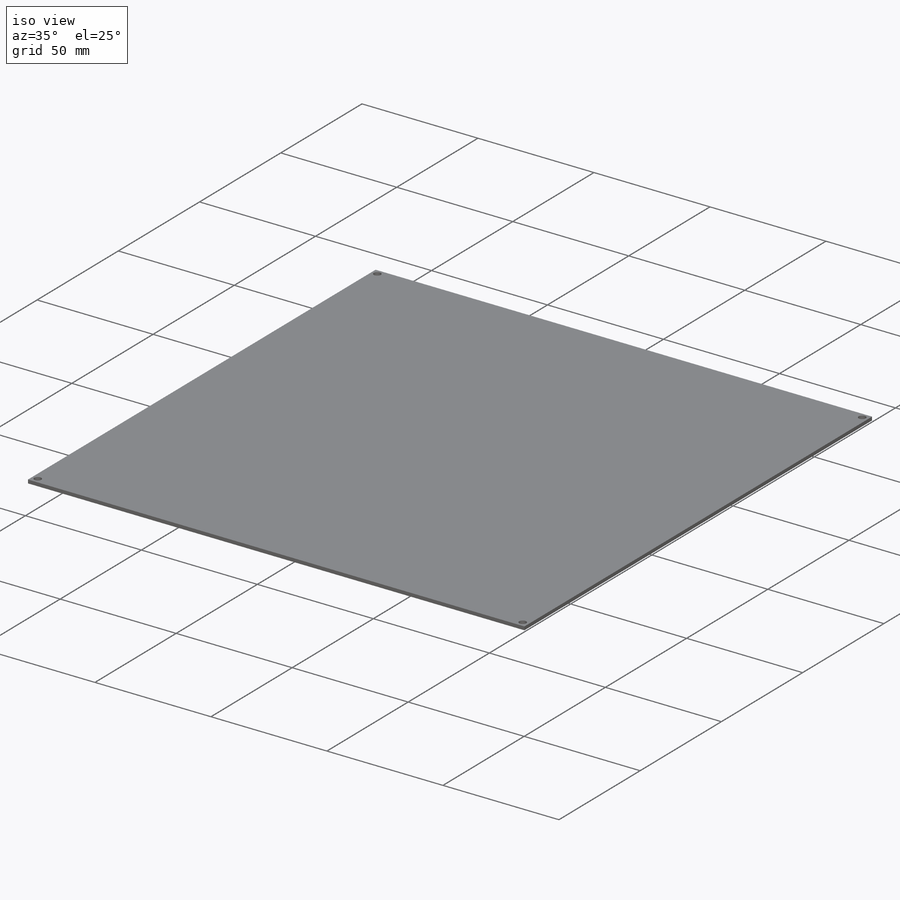
[diagram: iso view]
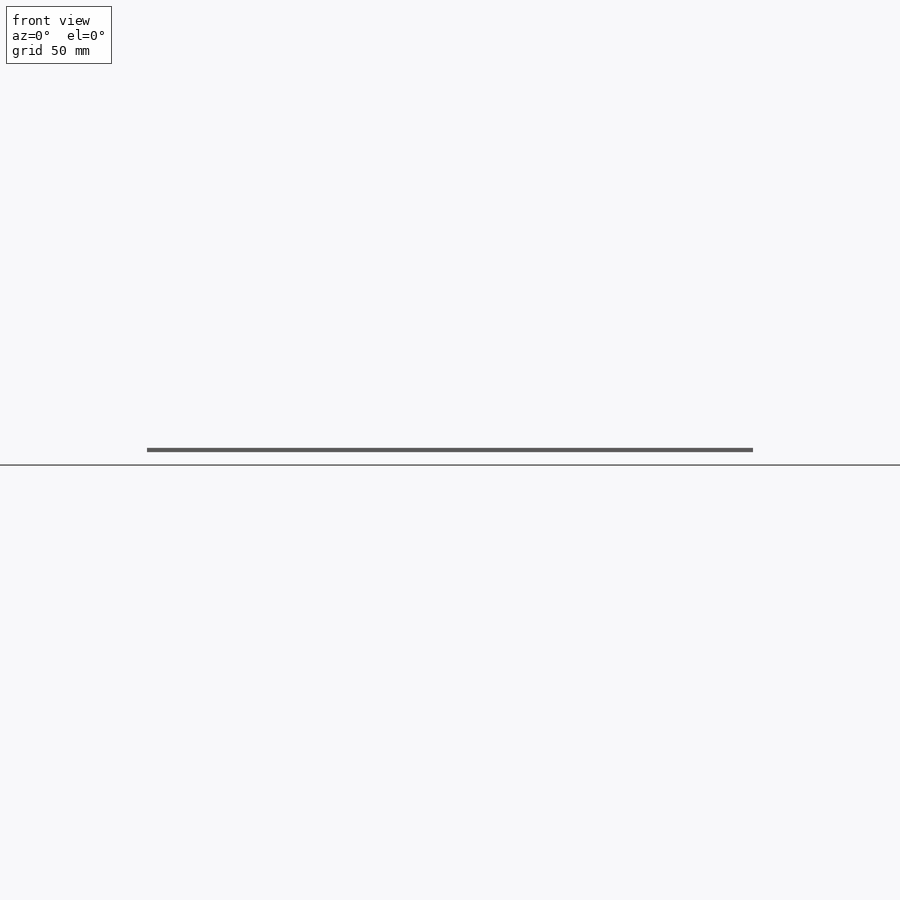
[diagram: front view]
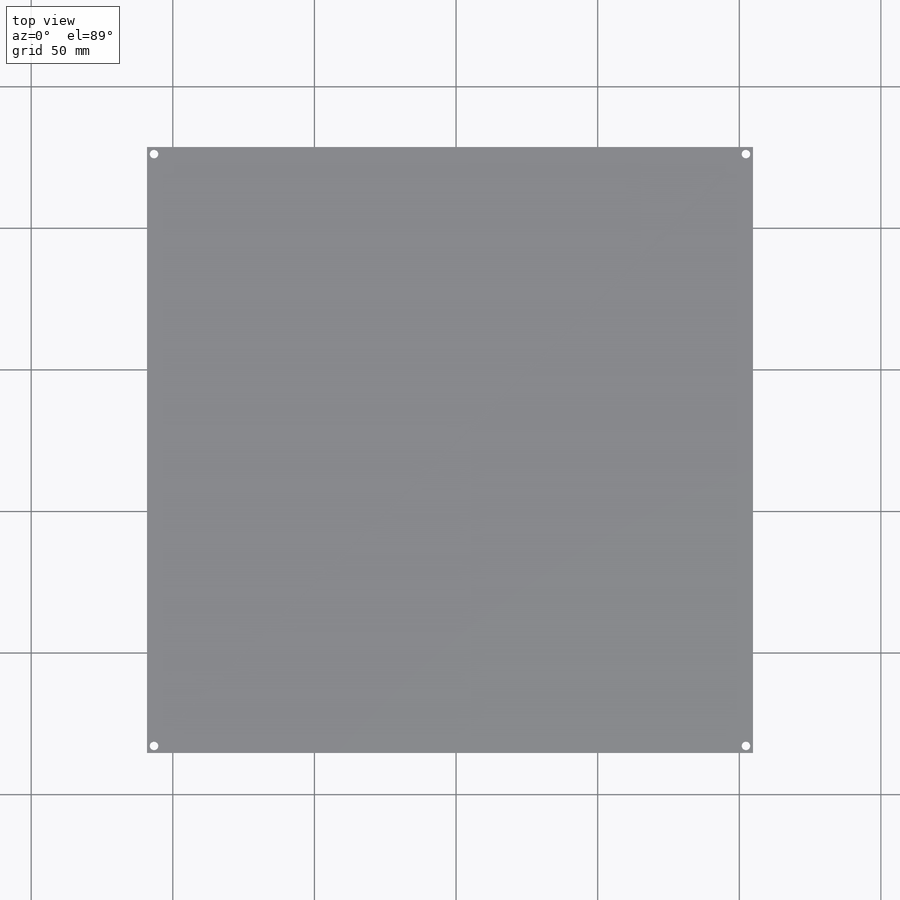
[diagram: top view]
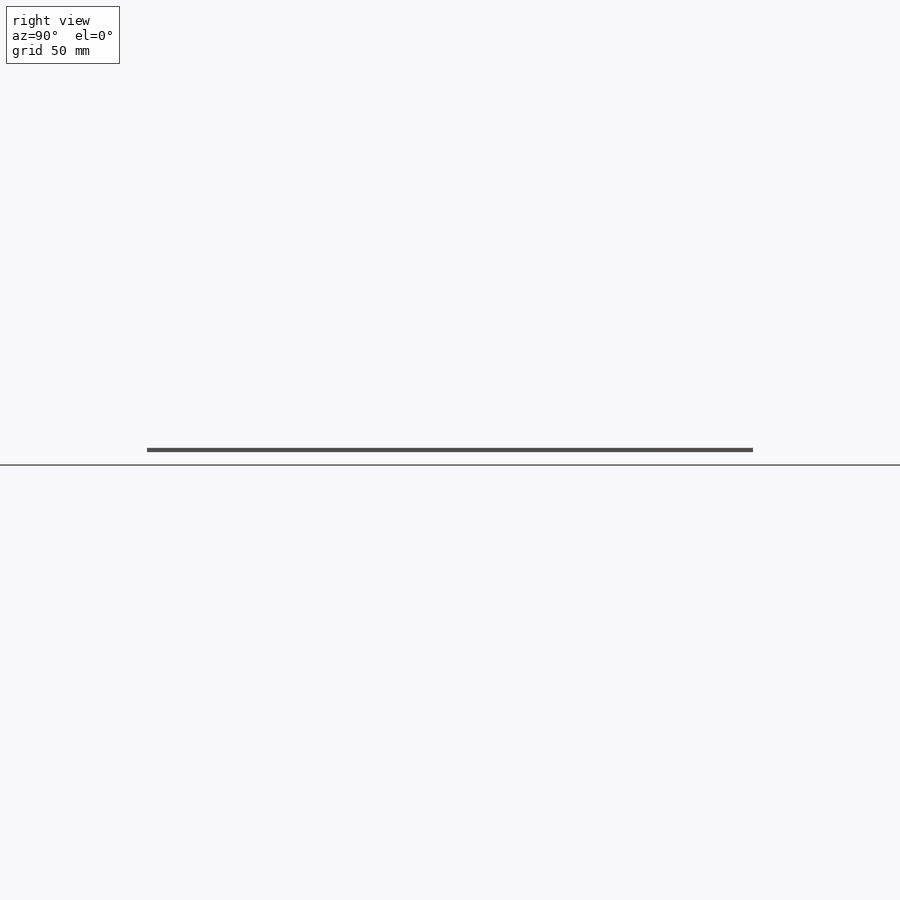
[diagram: right view]
SOLIDWORKS PART (.sldprt)
format: sldprt  version: not decoded by parser v0  size: 151,552 bytes
history: native  units: mm
features: plane x3, sketch x3, material x1, extrude x1, hole x1 (+9 scaffold rows collapsed)
feature tree (18):
  scaffold x9  (default folders/planes/origin — collapsed)
  material  "Matériau <non spécifié>"
  plane  "Plan de face"
  plane  "Plan de dessus"
  plane  "Plan de droite"
  sketch  "Esquisse1"  dims[c1.D1=~174.430592mm c1.D2=~214.790861mm c2.D1=214.0mm c2.D2=214.0mm]
  extrude  "Boss.-Extru.1"  Depth=1.5mm
  hole  "Diamètre du perçage Ø3.0 (3)1"  Diameter=3mm Depth=1.5mm
  sketch  "Esquisse3"  dims[D1=2.5mm D2=2.5mm D3=2.5mm D4=2.5mm D5=2.5mm D6=2.5mm D7=2.5mm D8=2.5mm]
  sketch  "Esquisse4"  dims[hole-wizard template sketch: 60 standard entries collapsed; hole parameters kept: c18.Profondeur du perçage jusqu'au prochain=1.5mm]
decode coverage: 5 of 5 modeling features carry decoded parameters
note: ~ marks probable driven/reference dimensions
note: suppression state not decoded; provenance and decode notes live in map.json
